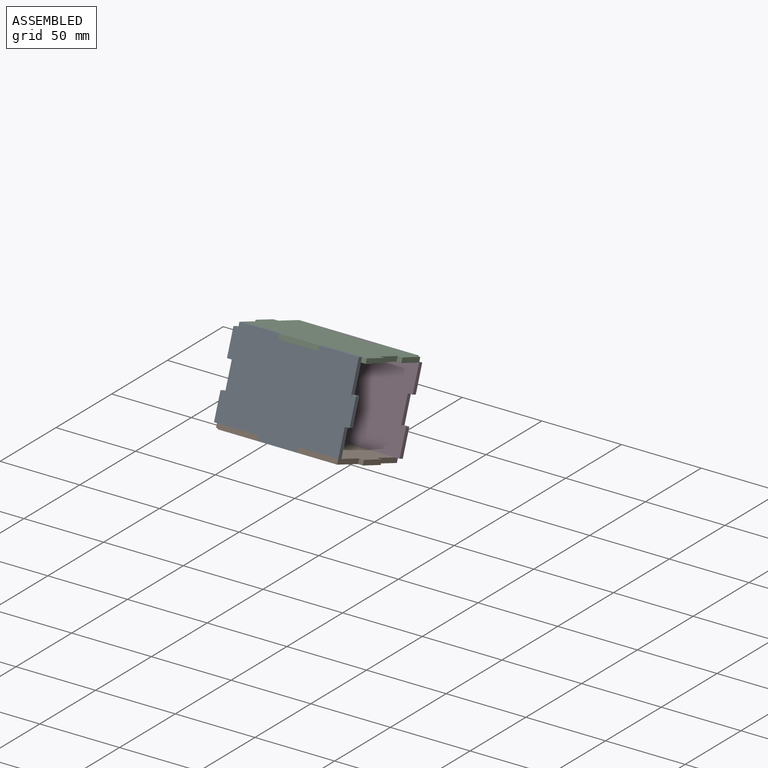
[diagram: assembled view]
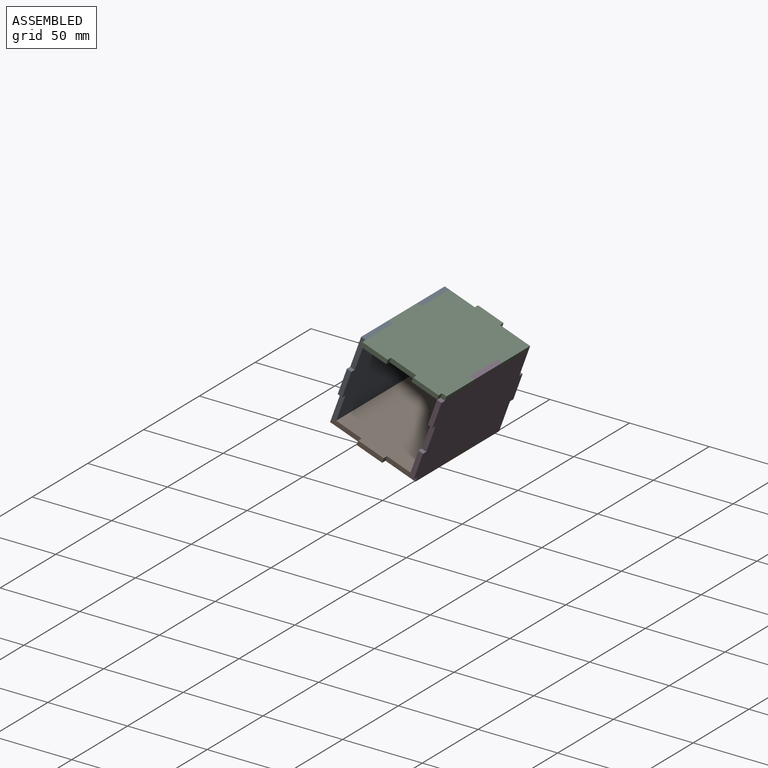
[diagram: assembled view, second angle]
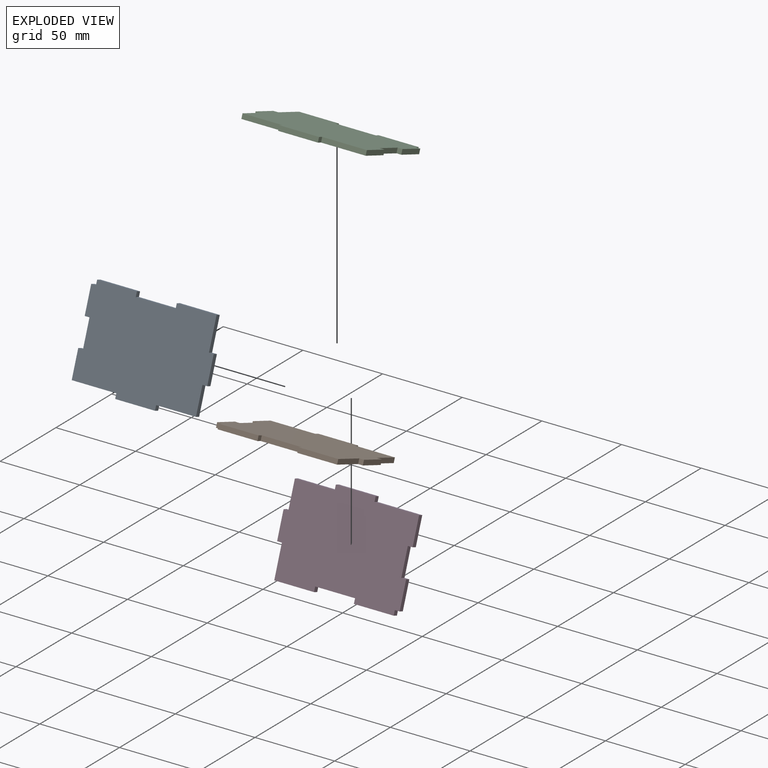
[diagram: exploded view]
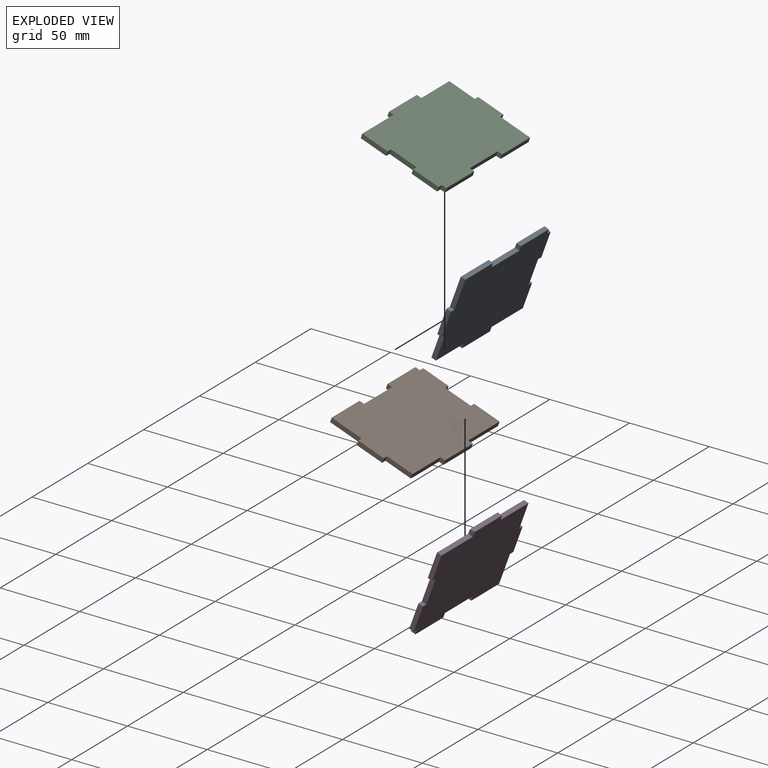
[diagram: exploded view, second angle]
ASSEMBLY  parts=4 mates=3
PART A: 24 faces, bbox 81x57x3 mm
  f0: plane 3x3mm, normal (0,1,0), area 9mm2, adj f1,f21,f22,f23
  f1: plane 17x3mm, normal (-1,0,0), area 51mm2, adj f0,f2,f22,f23
  f2: plane 3x3mm, normal (0,-1,0), area 9mm2, adj f1,f3,f22,f23
  f3: plane 17x3mm, normal (-1,0,0), area 51mm2, adj f2,f4,f22,f23
  f4: plane 25x3mm, normal (0,-1,0), area 75mm2, adj f3,f5,f22,f23
  f5: plane 3x3mm, normal (-1,0,0), area 9mm2, adj f4,f6,f22,f23
  f6: plane 25x3mm, normal (0,-1,0), area 75mm2, adj f5,f7,f22,f23
  f7: plane 3x3mm, normal (1,0,0), area 9mm2, adj f6,f8,f22,f23
  f8: plane 28x3mm, normal (0,-1,0), area 84mm2, adj f7,f9,f22,f23
  f9: plane 17x3mm, normal (1,0,0), area 51mm2, adj f8,f10,f22,f23
  f10: plane 3x3mm, normal (0,1,0), area 9mm2, adj f9,f11,f22,f23
  f11: plane 17x3mm, normal (1,0,0), area 51mm2, adj f10,f12,f22,f23
  f12: plane 3x3mm, normal (0,-1,0), area 9mm2, adj f11,f13,f22,f23
  f13: plane 17x3mm, normal (1,0,0), area 51mm2, adj f12,f14,f22,f23
  f14: plane 3x3mm, normal (0,1,0), area 9mm2, adj f13,f15,f22,f23
  f15: plane 3x3mm, normal (1,0,0), area 9mm2, adj f14,f16,f22,f23
  f16: plane 25x3mm, normal (0,1,0), area 75mm2, adj f15,f17,f22,f23
  f17: plane 3x3mm, normal (-1,0,0), area 9mm2, adj f16,f18,f22,f23
  f18: plane 25x3mm, normal (0,1,0), area 75mm2, adj f17,f19,f22,f23
  f19: plane 3x3mm, normal (1,0,0), area 9mm2, adj f18,f20,f22,f23
  f20: plane 25x3mm, normal (0,1,0), area 75mm2, adj f19,f21,f22,f23
  f21: plane 20x3mm, normal (-1,0,0), area 60mm2, adj f0,f20,f22,f23
  f22: plane 81x57mm, normal (0,0,1), area 4203mm2, adj f0,f1,f2,f3,f4,f5,f6,f7
  f23: plane 81x57mm, normal (0,0,-1), area 4203mm2, adj f0,f1,f2,f3,f4,f5,f6,f7
PART B: same geometry as A
PART C: same geometry as A
PART D: same geometry as A
PLACE A rot(axis=(0,-0.82,-0.57),180deg) t=(-10.27,-34.05,-56.28)mm
PLACE B rot(axis=(0,-0.17,-0.98),180deg) t=(-10.27,-17.02,-92.81)mm
PLACE C rot(axis=(-1,0,0),20deg) t=(-10.27,1.45,-42.07)mm
PLACE D rot(axis=(-1,0,0),110deg) t=(-10.27,16.69,-74.75)mm
MATE fastened D.f5 <-> C.f19  axis (-1,0,0) through (-22.77,27.34,-49.9)mm
MATE fastened A.f19 <-> C.f7  axis (-1,0,0) through (2.23,-23.41,-31.43)mm
MATE fastened B.f19 <-> A.f5  axis (-1,0,0) through (2.23,-41.87,-82.17)mm
